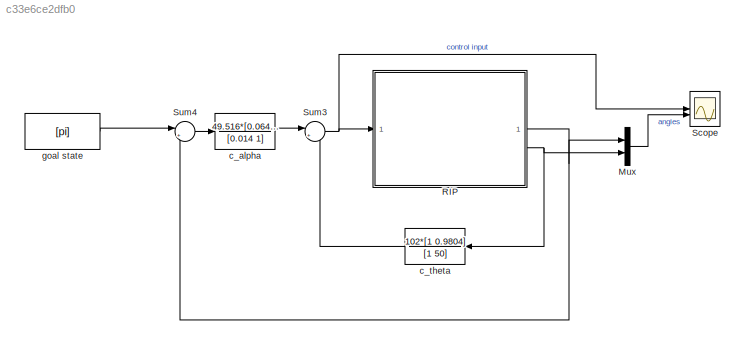
MODEL slx_c33e6ce2dfb0
KIND model
CONFIG AbsTol = auto
CONFIG EnableMultiTasking = off
CONFIG FixedStep = auto
CONFIG MaxStep = auto
CONFIG MinStep = auto
CONFIG RelTol = 1e-3
CONFIG SampleTimeConstraint = Unconstrained
CONFIG SolverName = VariableStepAuto
CONFIG StartTime = 0.0
CONFIG StopTime = 10.0
BLOCK [Mux] Mux
  DisplayOption = bar
  Inputs = 2
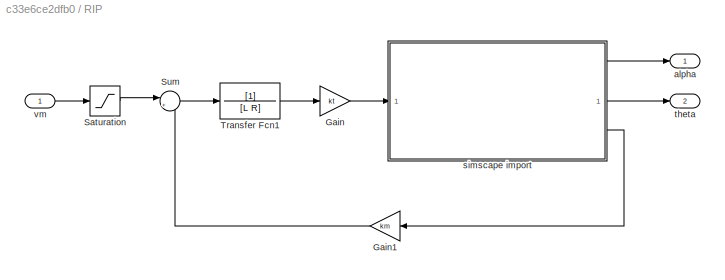
BLOCK [SubSystem] RIP
BLOCK [Gain] RIP/Gain
  Gain = kt
BLOCK [Gain] RIP/Gain1
  Gain = km
  NameLocation = top
BLOCK [Saturate] RIP/Saturation
  LowerLimit = -10
  UpperLimit = 10
BLOCK [Sum] RIP/Sum
  Inputs = |+-
BLOCK [TransferFcn] RIP/Transfer Fcn1
  Denominator = [L R]
BLOCK [Outport] RIP/alpha
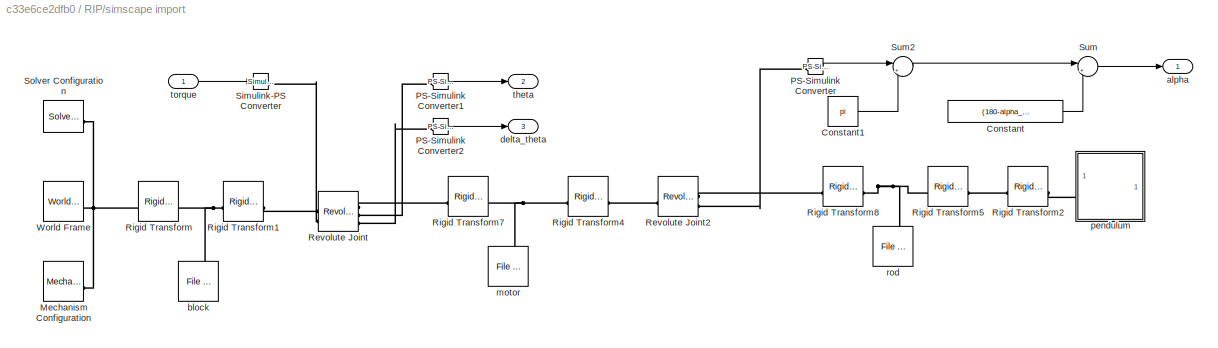
BLOCK [SubSystem] RIP/simscape import
BLOCK [Constant] RIP/simscape import/Constant
  Value = (180-alpha_0)*pi/180
BLOCK [Constant] RIP/simscape import/Constant1
  Value = pi
BLOCK [Reference] RIP/simscape import/Mechanism Configuration  REF=sm_lib/Utilities/Mechanism
Configuration
  SourceBlock = sm_lib/Utilities/Mechanism\nConfiguration
  SourceType = Mechanism\nConfiguration
BLOCK [Reference] RIP/simscape import/PS-Simulink Converter  REF=nesl_utility/PS-Simulink
Converter
  SourceBlock = nesl_utility/PS-Simulink\nConverter
  SourceType = PS-Simulink\nConverter
BLOCK [Reference] RIP/simscape import/PS-Simulink Converter1  REF=nesl_utility/PS-Simulink
Converter
  SourceBlock = nesl_utility/PS-Simulink\nConverter
  SourceType = PS-Simulink\nConverter
BLOCK [Reference] RIP/simscape import/PS-Simulink Converter2  REF=nesl_utility/PS-Simulink
Converter
  SourceBlock = nesl_utility/PS-Simulink\nConverter
  SourceType = PS-Simulink\nConverter
BLOCK [Reference] RIP/simscape import/Revolute Joint  REF=sm_lib/Joints/Revolute Joint
  SourceBlock = sm_lib/Joints/Revolute Joint
  SourceType = Revolute Joint
BLOCK [Reference] RIP/simscape import/Revolute Joint2  REF=sm_lib/Joints/Revolute Joint
  SourceBlock = sm_lib/Joints/Revolute Joint
  SourceType = Revolute Joint
BLOCK [Reference] RIP/simscape import/Rigid Transform  REF=sm_lib/Frames and
Transforms/Rigid
Transform
  SourceBlock = sm_lib/Frames and\nTransforms/Rigid\nTransform
  SourceType = Rigid\nTransform
BLOCK [Reference] RIP/simscape import/Rigid Transform1  REF=sm_lib/Frames and
Transforms/Rigid
Transform
  SourceBlock = sm_lib/Frames and\nTransforms/Rigid\nTransform
  SourceType = Rigid\nTransform
BLOCK [Reference] RIP/simscape import/Rigid Transform2  REF=sm_lib/Frames and
Transforms/Rigid
Transform
  SourceBlock = sm_lib/Frames and\nTransforms/Rigid\nTransform
  SourceType = Rigid\nTransform
BLOCK [Reference] RIP/simscape import/Rigid Transform4  REF=sm_lib/Frames and
Transforms/Rigid
Transform
  SourceBlock = sm_lib/Frames and\nTransforms/Rigid\nTransform
  SourceType = Rigid\nTransform
BLOCK [Reference] RIP/simscape import/Rigid Transform5  REF=sm_lib/Frames and
Transforms/Rigid
Transform
  SourceBlock = sm_lib/Frames and\nTransforms/Rigid\nTransform
  SourceType = Rigid\nTransform
BLOCK [Reference] RIP/simscape import/Rigid Transform7  REF=sm_lib/Frames and
Transforms/Rigid
Transform
  SourceBlock = sm_lib/Frames and\nTransforms/Rigid\nTransform
  SourceType = Rigid\nTransform
BLOCK [Reference] RIP/simscape import/Rigid Transform8  REF=sm_lib/Frames and
Transforms/Rigid
Transform
  SourceBlock = sm_lib/Frames and\nTransforms/Rigid\nTransform
  SourceType = Rigid\nTransform
BLOCK [Reference] RIP/simscape import/Simulink-PS Converter  REF=nesl_utility/Simulink-PS
Converter
  SourceBlock = nesl_utility/Simulink-PS\nConverter
  SourceType = Simulink-PS\nConverter
BLOCK [Reference] RIP/simscape import/Solver Configuration  REF=nesl_utility/Solver
Configuration
  SourceBlock = nesl_utility/Solver\nConfiguration
  SourceType = Solver\nConfiguration
BLOCK [Sum] RIP/simscape import/Sum
  Inputs = |+-
BLOCK [Sum] RIP/simscape import/Sum2
  Inputs = |++
BLOCK [Reference] RIP/simscape import/World Frame  REF=sm_lib/Frames and
Transforms/World Frame
  SourceBlock = sm_lib/Frames and\nTransforms/World Frame
  SourceType = World Frame
BLOCK [Outport] RIP/simscape import/alpha
BLOCK [Reference] RIP/simscape import/block  REF=sm_lib/Body Elements/File Solid
  NameLocation = right
  SourceBlock = sm_lib/Body Elements/File Solid
  SourceType = File Solid
BLOCK [Outport] RIP/simscape import/delta_theta
  Port = 3
BLOCK [Reference] RIP/simscape import/motor  REF=sm_lib/Body Elements/File Solid
  NameLocation = right
  SourceBlock = sm_lib/Body Elements/File Solid
  SourceType = File Solid
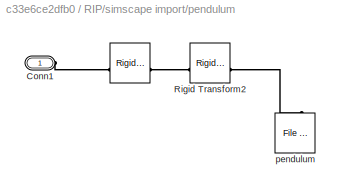
BLOCK [SubSystem] RIP/simscape import/pendulum
BLOCK [Reference] RIP/simscape import/pendulum/   REF=sm_lib/Frames and
Transforms/Rigid
Transform
  SourceBlock = sm_lib/Frames and\nTransforms/Rigid\nTransform
  SourceType = Rigid\nTransform
BLOCK [PMIOPort] RIP/simscape import/pendulum/Conn1
  Side = Left
BLOCK [Reference] RIP/simscape import/pendulum/Rigid Transform2  REF=sm_lib/Frames and
Transforms/Rigid
Transform
  SourceBlock = sm_lib/Frames and\nTransforms/Rigid\nTransform
  SourceType = Rigid\nTransform
BLOCK [Reference] RIP/simscape import/pendulum/pendulum  REF=sm_lib/Body Elements/File Solid
  NameLocation = left
  SourceBlock = sm_lib/Body Elements/File Solid
  SourceType = File Solid
BLOCK [Reference] RIP/simscape import/rod  REF=sm_lib/Body Elements/File Solid
  NameLocation = right
  SourceBlock = sm_lib/Body Elements/File Solid
  SourceType = File Solid
BLOCK [Outport] RIP/simscape import/theta
  Port = 2
BLOCK [Inport] RIP/simscape import/torque
BLOCK [Outport] RIP/theta
  Port = 2
BLOCK [Inport] RIP/vm
BLOCK [Scope] Scope
  Floating = off
  NumInputPorts = 2
  ScopeSpecificationString = Simulink.scopes.TimeScopeBlockCfg('CurrentConfiguration', extmgr.ConfigurationSet(extmgr.Configuration('Core','General UI',true),extmgr.Configuration('Core','Source UI',true),extmgr.Configuration('Sources','WiredSimulink',true),extmgr.Configuration('Visuals','Time Domain',true,'SerializedDisplays',{struct('MinYLimReal','-54.42248','MaxYLimReal','15.71744','YLabelReal','','MinYLimMag','0.00000','Ma...<+2029ch>
BLOCK [Sum] Sum3
  Inputs = |++
BLOCK [Sum] Sum4
  Inputs = |+-
BLOCK [TransferFcn] c_alpha
  Denominator = [0.014 1]
  Numerator = 49.516*[0.064 1]
BLOCK [TransferFcn] c_theta
  Denominator = [1 50]
  Numerator = 102*[1 0.9804]
BLOCK [Constant] goal state
  Value = [pi]
LINE Mux:1 -> Scope:2
LINE RIP/Gain1:1 -> RIP/Sum:2
LINE RIP/Gain:1 -> RIP/simscape import:1
LINE RIP/Saturation:1 -> RIP/Sum:1
LINE RIP/Sum:1 -> RIP/Transfer Fcn1:1
LINE RIP/Transfer Fcn1:1 -> RIP/Gain:1
LINE RIP/simscape import/Constant1:1 -> RIP/simscape import/Sum2:2
LINE RIP/simscape import/Constant:1 -> RIP/simscape import/Sum:2
LINE RIP/simscape import/PS-Simulink Converter1:1 -> RIP/simscape import/theta:1
LINE RIP/simscape import/PS-Simulink Converter2:1 -> RIP/simscape import/delta_theta:1
LINE RIP/simscape import/PS-Simulink Converter:1 -> RIP/simscape import/Sum2:1
LINE RIP/simscape import/Sum2:1 -> RIP/simscape import/Sum:1
LINE RIP/simscape import/Sum:1 -> RIP/simscape import/alpha:1
LINE RIP/simscape import/torque:1 -> RIP/simscape import/Simulink-PS Converter:1
LINE RIP/simscape import:1 -> RIP/alpha:1
LINE RIP/simscape import:2 -> RIP/theta:1
LINE RIP/simscape import:3 -> RIP/Gain1:1
LINE RIP/vm:1 -> RIP/Saturation:1
NET RIP:1 -> Mux:1, Sum4:2
NET RIP:2 -> Mux:2, c_theta:1
NET Sum3:1 -> RIP:1, Scope:1
LINE Sum4:1 -> c_alpha:1
LINE c_alpha:1 -> Sum3:1
LINE c_theta:1 -> Sum3:2
LINE goal state:1 -> Sum4:1
PNET net1: RIP/simscape import/Mechanism Configuration:RConn1 -- RIP/simscape import/Rigid Transform:LConn1 -- RIP/simscape import/Solver Configuration:RConn1 -- RIP/simscape import/World Frame:RConn1
PLINE RIP/simscape import/PS-Simulink Converter1:LConn1 -- RIP/simscape import/Revolute Joint:RConn2
PLINE RIP/simscape import/PS-Simulink Converter2:LConn1 -- RIP/simscape import/Revolute Joint:RConn3
PLINE RIP/simscape import/PS-Simulink Converter:LConn1 -- RIP/simscape import/Revolute Joint2:RConn2
PLINE RIP/simscape import/Revolute Joint2:LConn1 -- RIP/simscape import/Rigid Transform4:RConn1
PLINE RIP/simscape import/Revolute Joint2:RConn1 -- RIP/simscape import/Rigid Transform8:LConn1
PLINE RIP/simscape import/Revolute Joint:LConn1 -- RIP/simscape import/Rigid Transform1:RConn1
PLINE RIP/simscape import/Revolute Joint:LConn2 -- RIP/simscape import/Simulink-PS Converter:RConn1
PLINE RIP/simscape import/Revolute Joint:RConn1 -- RIP/simscape import/Rigid Transform7:LConn1
PNET net2: RIP/simscape import/Rigid Transform1:LConn1 -- RIP/simscape import/Rigid Transform:RConn1 -- RIP/simscape import/block:RConn1
PLINE RIP/simscape import/Rigid Transform2:LConn1 -- RIP/simscape import/Rigid Transform5:RConn1
PLINE RIP/simscape import/Rigid Transform2:RConn1 -- RIP/simscape import/pendulum:LConn1
PNET net3: RIP/simscape import/Rigid Transform4:LConn1 -- RIP/simscape import/Rigid Transform7:RConn1 -- RIP/simscape import/motor:RConn1
PNET net4: RIP/simscape import/Rigid Transform5:LConn1 -- RIP/simscape import/Rigid Transform8:RConn1 -- RIP/simscape import/rod:RConn1
PLINE RIP/simscape import/pendulum/ :LConn1 -- RIP/simscape import/pendulum/Conn1:RConn1
PLINE RIP/simscape import/pendulum/ :RConn1 -- RIP/simscape import/pendulum/Rigid Transform2:LConn1
PLINE RIP/simscape import/pendulum/Rigid Transform2:RConn1 -- RIP/simscape import/pendulum/pendulum:RConn1
note: NET lines group one-source signal fan-out (src -> all destinations, sorted); 1:1 wires keep LINE; PNET lines group multi-terminal physical nets as a canonical sorted terminal list (undirected conserving connections); 2-terminal nets keep the pairwise PLINE form
